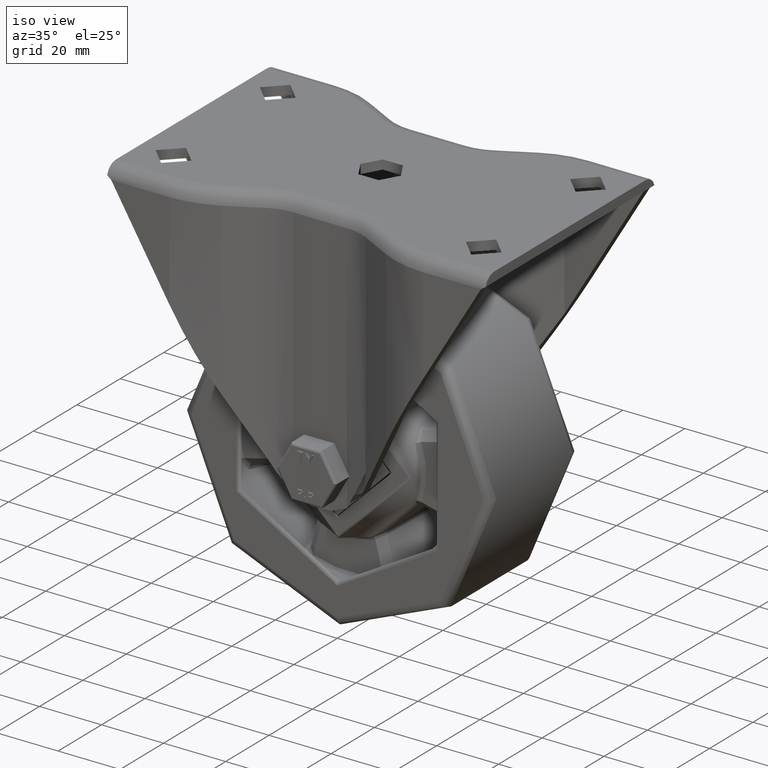
[diagram: clean part render]
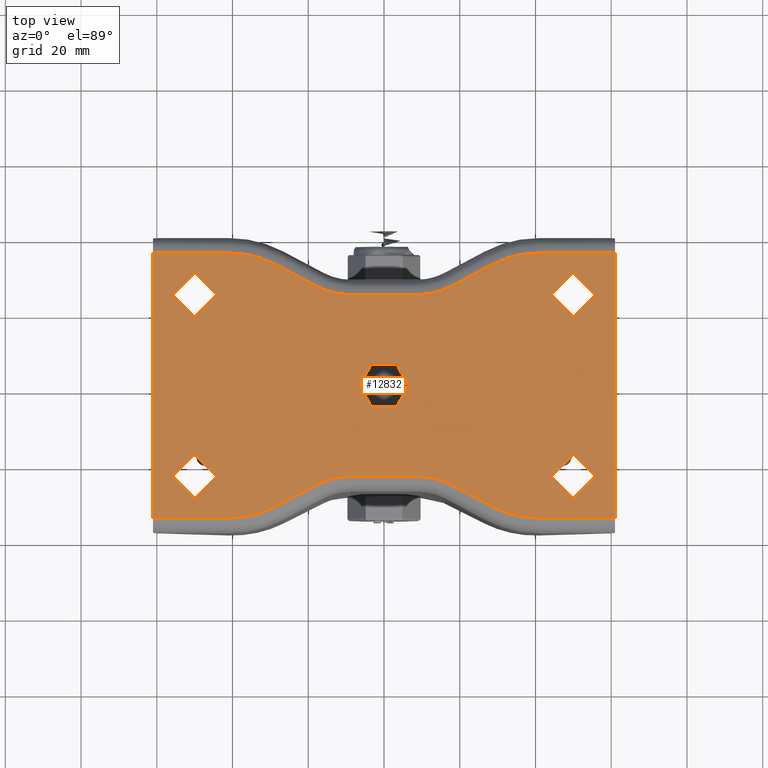
[diagram: tour spotlight — one face highlighted and labeled with its STEP entity id]
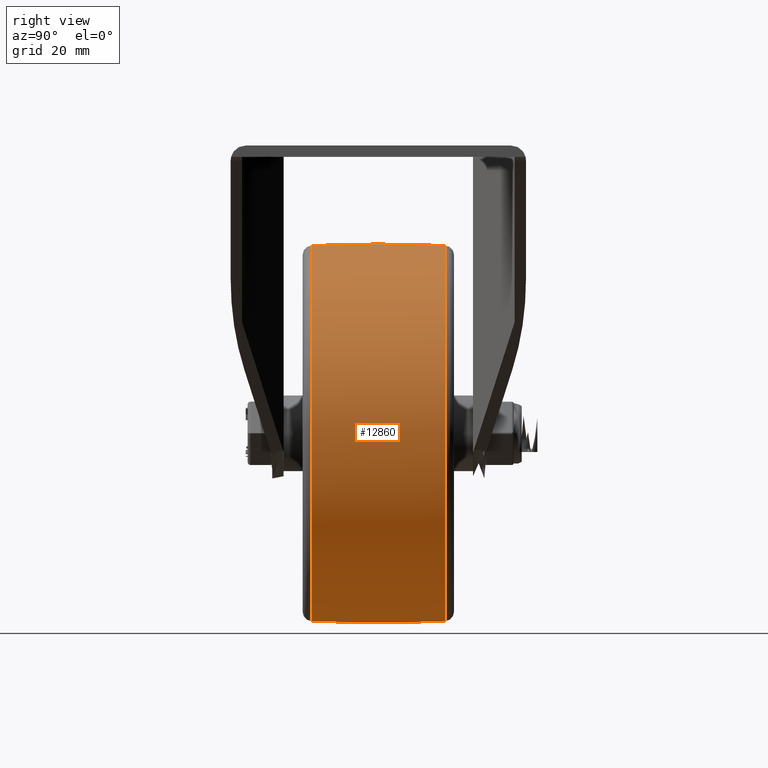
[diagram: tour spotlight — one face highlighted and labeled with its STEP entity id]
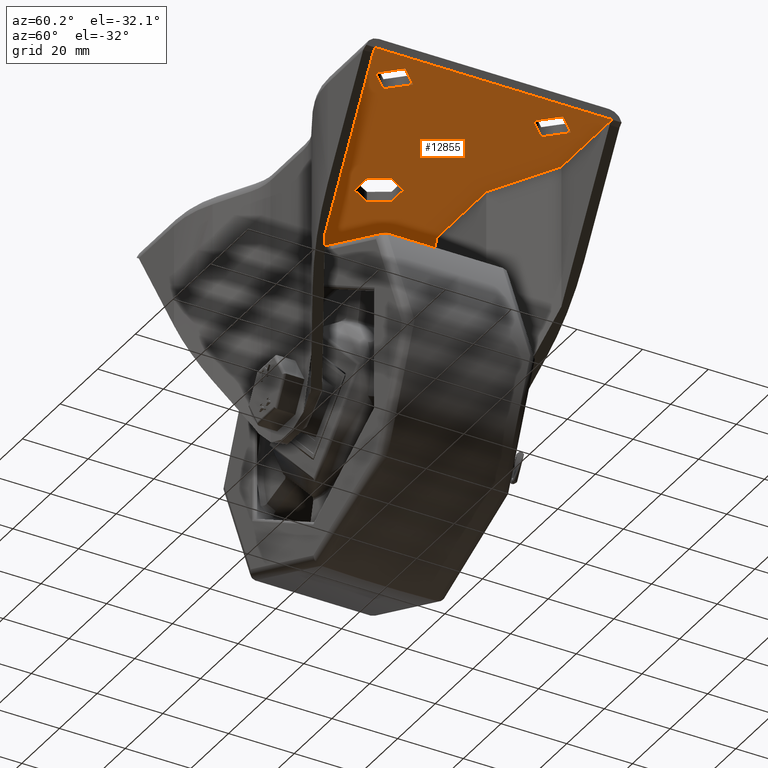
[diagram: tour spotlight — one face highlighted and labeled with its STEP entity id]
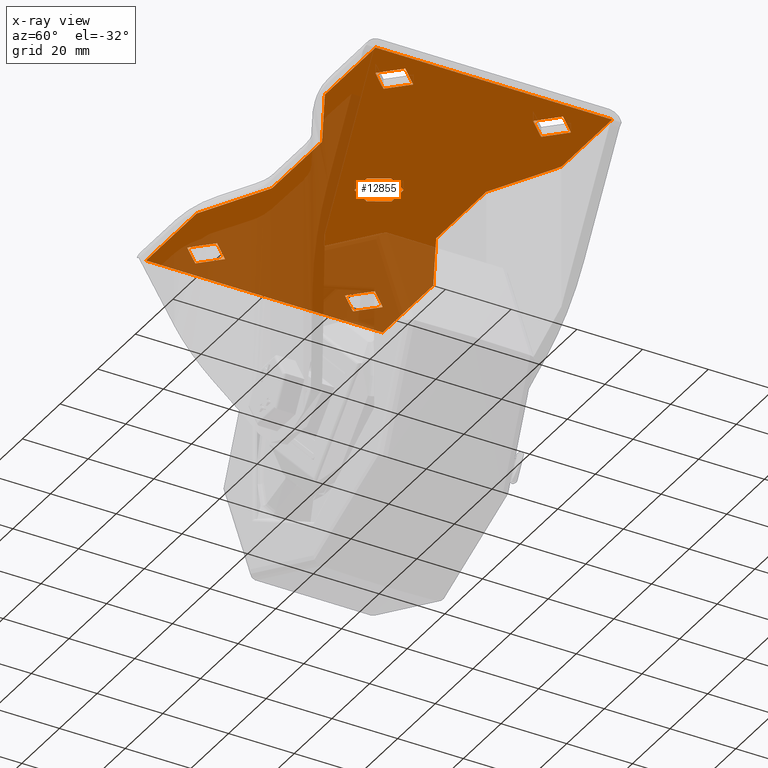
[diagram: x-ray of the same camera — body ghosted, this tour face saturated]
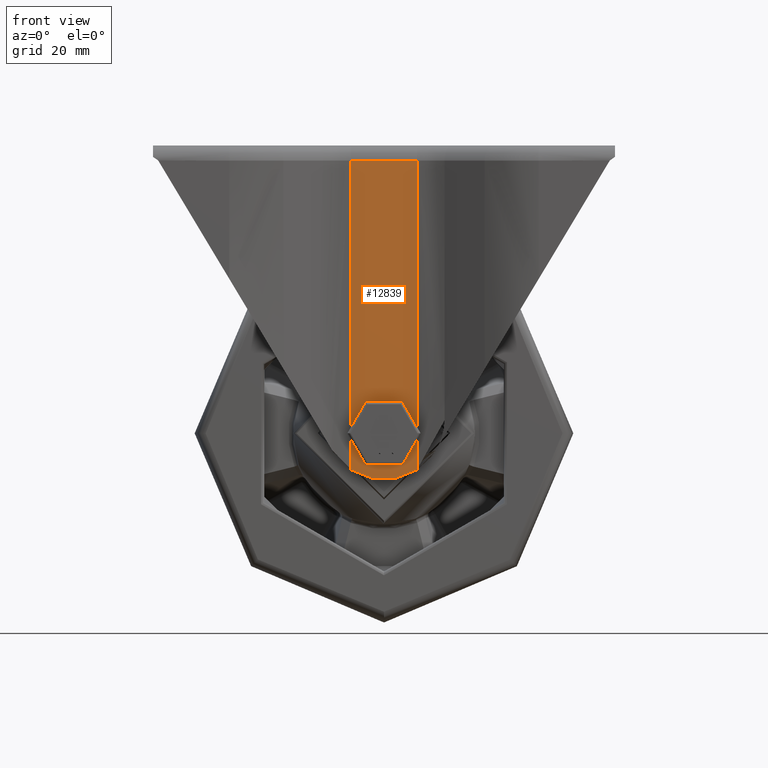
[diagram: tour spotlight — one face highlighted and labeled with its STEP entity id]
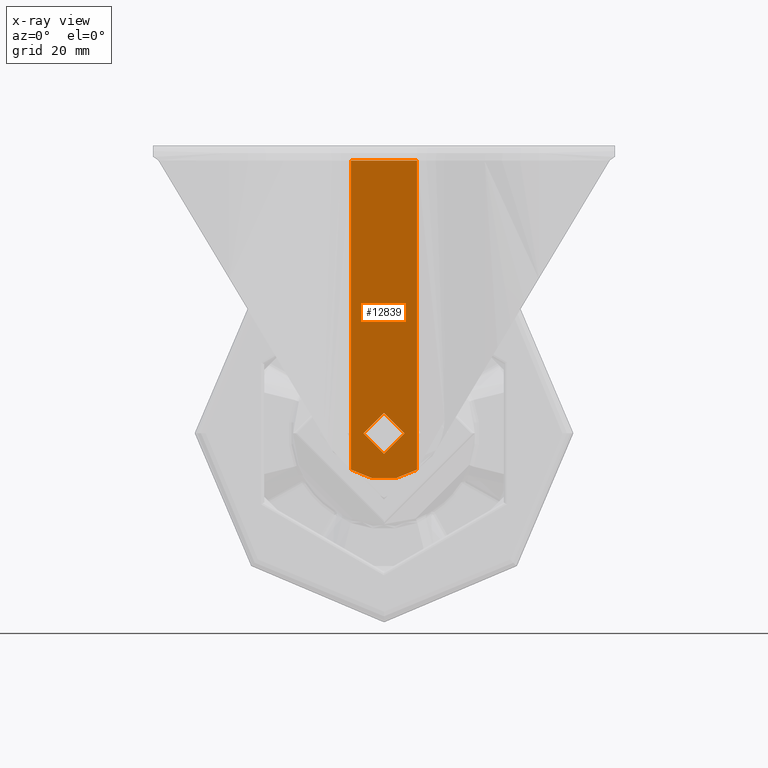
[diagram: x-ray of the same camera — body ghosted, this tour face saturated]
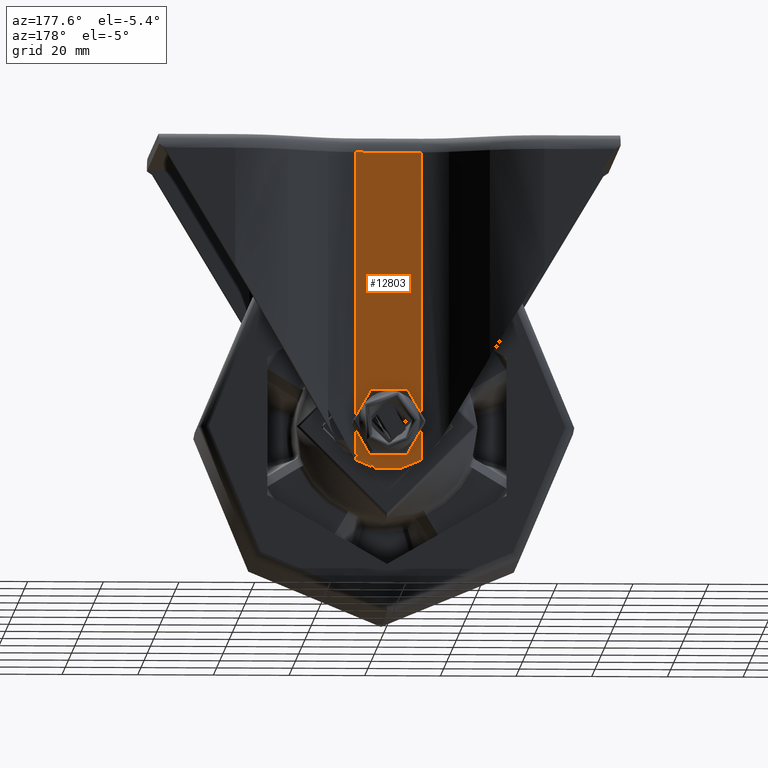
[diagram: tour spotlight — one face highlighted and labeled with its STEP entity id]
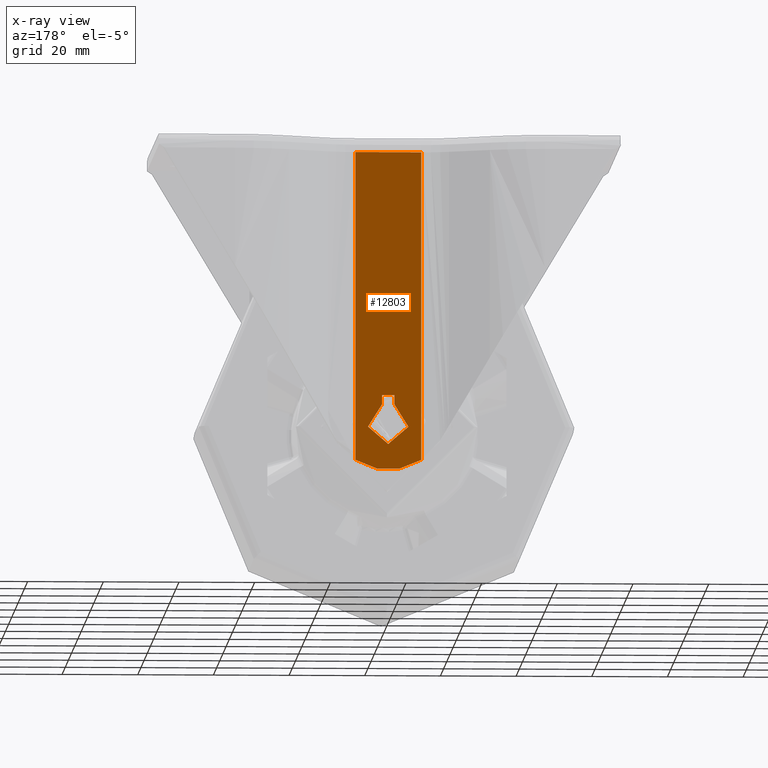
[diagram: x-ray of the same camera — body ghosted, this tour face saturated]
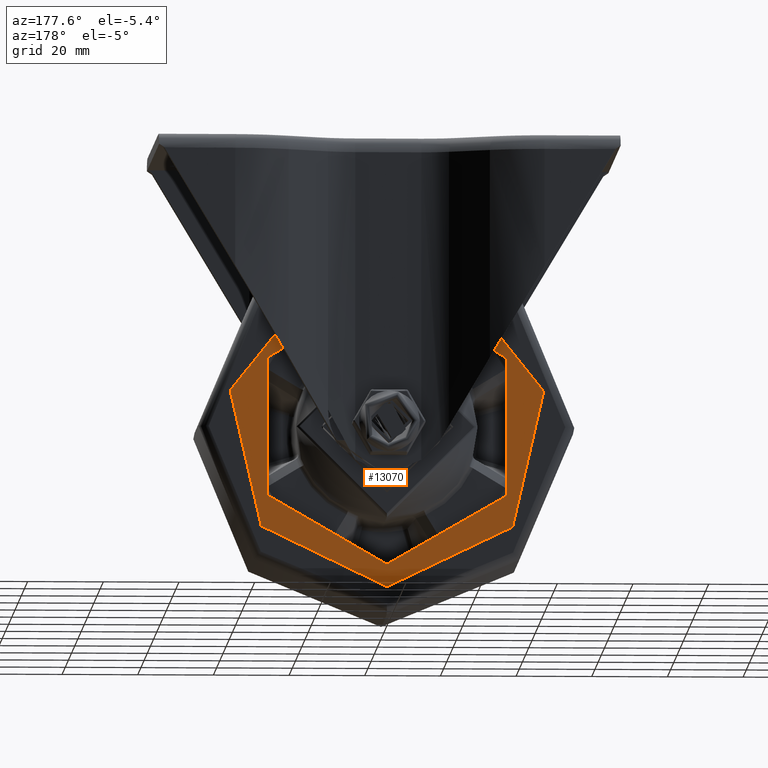
[diagram: tour spotlight — one face highlighted and labeled with its STEP entity id]
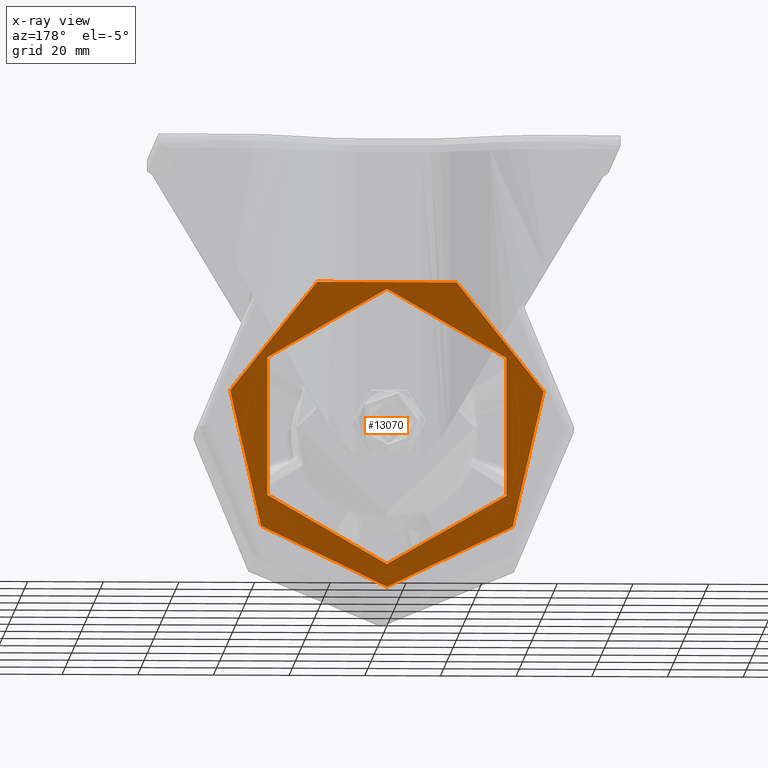
[diagram: x-ray of the same camera — body ghosted, this tour face saturated]
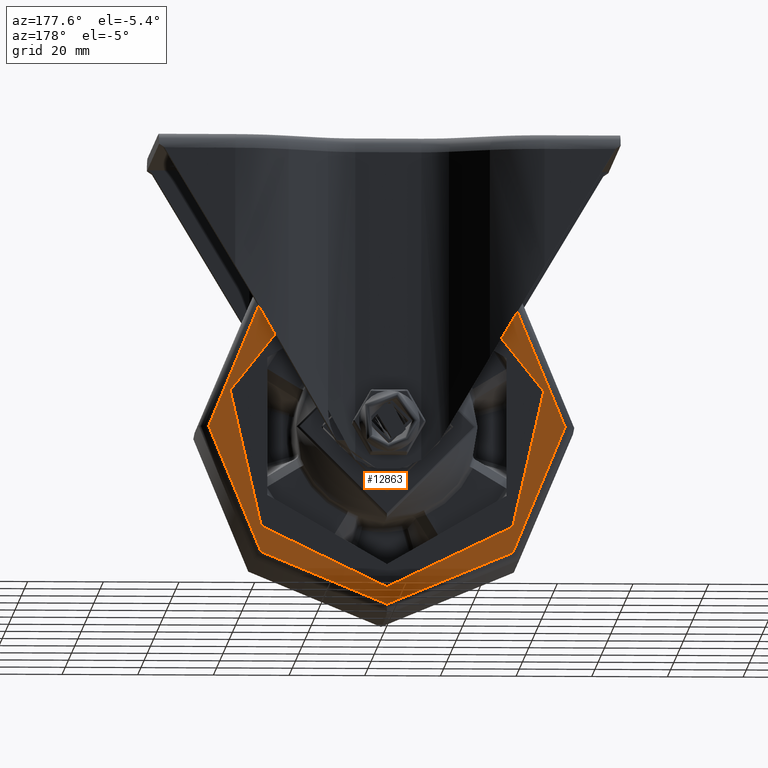
[diagram: tour spotlight — one face highlighted and labeled with its STEP entity id]
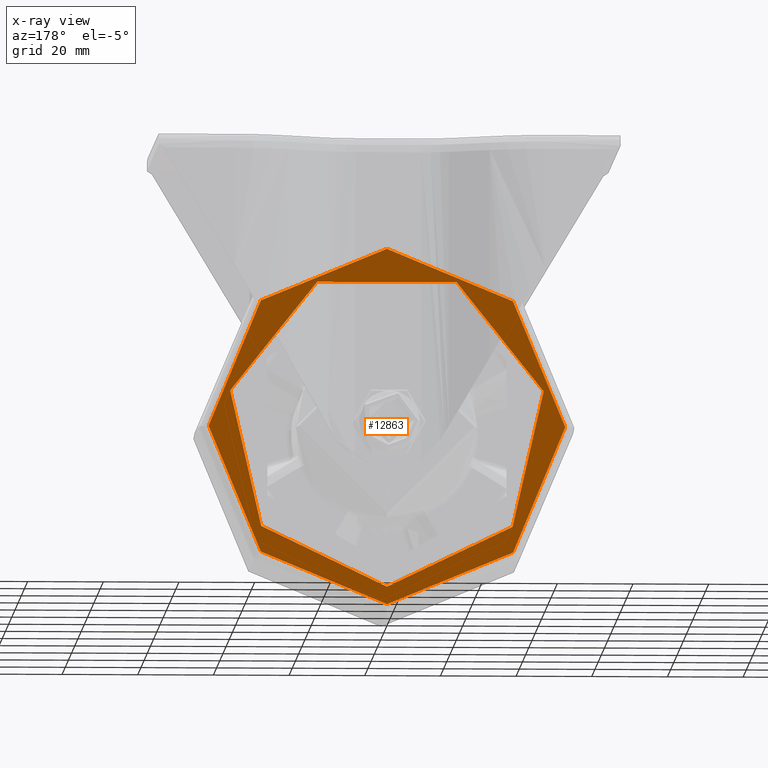
[diagram: x-ray of the same camera — body ghosted, this tour face saturated]
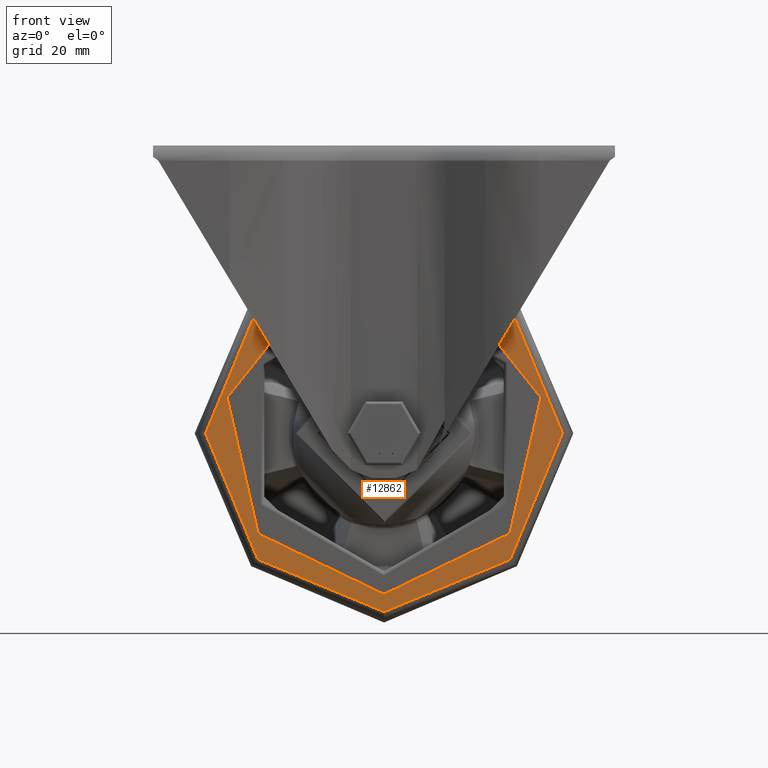
[diagram: tour spotlight — one face highlighted and labeled with its STEP entity id]
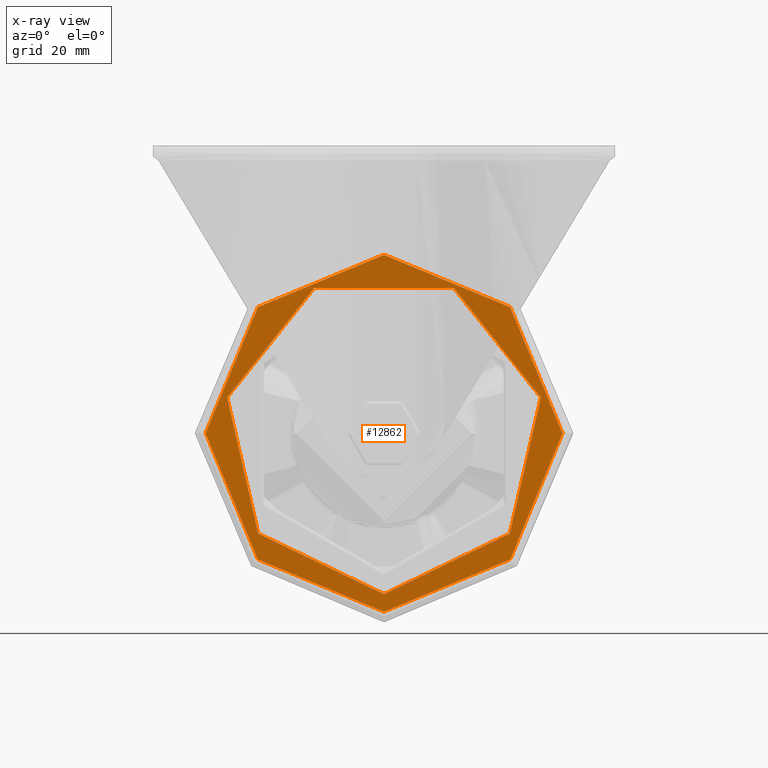
[diagram: x-ray of the same camera — body ghosted, this tour face saturated]
A machine part: a face-by-face anatomy tour. The part has 1172 B-rep faces; the first image is the clean iso view, then the 8 largest visible faces are spotlighted one at a time (largest first), each with its STEP entity span.

Face 1 — top view, entity #12832. In plain terms, the highlighted planar face has unit normal (0, 0, -1).
Definition (entity closure, byte-faithful):
#1518=FACE_BOUND('',#3110,.T.);
#1519=FACE_BOUND('',#3111,.T.);
#1520=FACE_BOUND('',#3112,.T.);
#1521=FACE_BOUND('',#3113,.T.);
#1522=FACE_BOUND('',#3114,.T.);
#1654=CIRCLE('',#13808,5.75);
#1656=CIRCLE('',#13811,5.75);
#1665=CIRCLE('',#13849,26.5);
#1668=CIRCLE('',#13854,19.5);
#1671=CIRCLE('',#13859,19.5);
#1674=CIRCLE('',#13864,26.5);
#1677=CIRCLE('',#13869,6.5);
#1682=CIRCLE('',#13877,5.75);
#1684=CIRCLE('',#13880,5.75);
#1691=CIRCLE('',#13900,26.5);
#1692=CIRCLE('',#13901,19.5);
#1693=CIRCLE('',#13902,19.5);
#1694=CIRCLE('',#13903,26.5);
#1695=CIRCLE('',#13904,6.5);
#2279=FACE_OUTER_BOUND('',#3109,.T.);
#3109=EDGE_LOOP('',(#8844,#8845,#8846,#8847,#8848,#8849,#8850,#8851,#8852,
#8853,#8854,#8855,#8856,#8857,#8858,#8859,#8860,#8861,#8862,#8863));
#3110=EDGE_LOOP('',(#8864,#8865));
#3111=EDGE_LOOP('',(#8866));
#3112=EDGE_LOOP('',(#8867));
#3113=EDGE_LOOP('',(#8868));
#3114=EDGE_LOOP('',(#8869));
#4068=LINE('',#18337,#4766);
#4069=LINE('',#18345,#4767);
#4070=LINE('',#18353,#4768);
#4071=LINE('',#18361,#4769);
#4072=LINE('',#18370,#4770);
#4084=LINE('',#18418,#4782);
#4100=LINE('',#18491,#4798);
#4101=LINE('',#18493,#4799);
#4102=LINE('',#18497,#4800);
#4103=LINE('',#18501,#4801);
#4104=LINE('',#18505,#4802);
#4105=LINE('',#18508,#4803);
#4766=VECTOR('',#15172,10.);
#4767=VECTOR('',#15183,10.);
#4768=VECTOR('',#15194,10.);
#4769=VECTOR('',#15205,10.);
#4770=VECTOR('',#15218,10.);
#4782=VECTOR('',#15264,1.);
#4798=VECTOR('',#15310,1.);
#4799=VECTOR('',#15311,10.);
#4800=VECTOR('',#15314,10.);
#4801=VECTOR('',#15317,10.);
#4802=VECTOR('',#15320,10.);
#4803=VECTOR('',#15323,10.);
#5434=VERTEX_POINT('',#18200);
#5436=VERTEX_POINT('',#18206);
#5466=VERTEX_POINT('',#18334);
#5467=VERTEX_POINT('',#18336);
#5468=VERTEX_POINT('',#18340);
#5469=VERTEX_POINT('',#18344);
#5470=VERTEX_POINT('',#18348);
#5471=VERTEX_POINT('',#18352);
#5472=VERTEX_POINT('',#18356);
#5473=VERTEX_POINT('',#18360);
#5474=VERTEX_POINT('',#18364);
#5475=VERTEX_POINT('',#18368);
#5477=VERTEX_POINT('',#18373);
#5478=VERTEX_POINT('',#18375);
#5489=VERTEX_POINT('',#18401);
#5491=VERTEX_POINT('',#18407);
#5494=VERTEX_POINT('',#18417);
#5512=VERTEX_POINT('',#18490);
#5513=VERTEX_POINT('',#18492);
#5514=VERTEX_POINT('',#18494);
#5515=VERTEX_POINT('',#18496);
#5516=VERTEX_POINT('',#18498);
#5517=VERTEX_POINT('',#18500);
#5518=VERTEX_POINT('',#18502);
#5519=VERTEX_POINT('',#18504);
#5520=VERTEX_POINT('',#18506);
#6677=EDGE_CURVE('',#5434,#5434,#1654,.T.);
#6680=EDGE_CURVE('',#5436,#5436,#1656,.T.);
#6731=EDGE_CURVE('',#5467,#5466,#4068,.T.);
#6733=EDGE_CURVE('',#5468,#5467,#1665,.T.);
#6735=EDGE_CURVE('',#5469,#5468,#4069,.T.);
#6737=EDGE_CURVE('',#5470,#5469,#1668,.T.);
#6739=EDGE_CURVE('',#5471,#5470,#4070,.T.);
#6741=EDGE_CURVE('',#5472,#5471,#1671,.T.);
#6743=EDGE_CURVE('',#5473,#5472,#4071,.T.);
#6745=EDGE_CURVE('',#5474,#5473,#1674,.T.);
#6748=EDGE_CURVE('',#5475,#5474,#4072,.T.);
#6750=EDGE_CURVE('',#5477,#5478,#1677,.T.);
#6763=EDGE_CURVE('',#5489,#5489,#1682,.T.);
#6766=EDGE_CURVE('',#5491,#5491,#1684,.T.);
#6770=EDGE_CURVE('',#5494,#5475,#4084,.T.);
#6797=EDGE_CURVE('',#5466,#5512,#4100,.T.);
#6798=EDGE_CURVE('',#5513,#5512,#4101,.T.);
#6799=EDGE_CURVE('',#5514,#5513,#1691,.T.);
#6800=EDGE_CURVE('',#5515,#5514,#4102,.T.);
#6801=EDGE_CURVE('',#5516,#5515,#1692,.T.);
#6802=EDGE_CURVE('',#5517,#5516,#4103,.T.);
#6803=EDGE_CURVE('',#5518,#5517,#1693,.T.);
#6804=EDGE_CURVE('',#5519,#5518,#4104,.T.);
#6805=EDGE_CURVE('',#5520,#5519,#1694,.T.);
#6806=EDGE_CURVE('',#5494,#5520,#4105,.T.);
#6807=EDGE_CURVE('',#5477,#5478,#1695,.T.);
#8844=ORIENTED_EDGE('',*,*,#6770,.T.);
#8845=ORIENTED_EDGE('',*,*,#6748,.T.);
#8846=ORIENTED_EDGE('',*,*,#6745,.T.);
#8847=ORIENTED_EDGE('',*,*,#6743,.T.);
#8848=ORIENTED_EDGE('',*,*,#6741,.T.);
#8849=ORIENTED_EDGE('',*,*,#6739,.T.);
#8850=ORIENTED_EDGE('',*,*,#6737,.T.);
#8851=ORIENTED_EDGE('',*,*,#6735,.T.);
#8852=ORIENTED_EDGE('',*,*,#6733,.T.);
#8853=ORIENTED_EDGE('',*,*,#6731,.T.);
#8854=ORIENTED_EDGE('',*,*,#6797,.T.);
#8855=ORIENTED_EDGE('',*,*,#6798,.F.);
#8856=ORIENTED_EDGE('',*,*,#6799,.F.);
#8857=ORIENTED_EDGE('',*,*,#6800,.F.);
#8858=ORIENTED_EDGE('',*,*,#6801,.F.);
#8859=ORIENTED_EDGE('',*,*,#6802,.F.);
#8860=ORIENTED_EDGE('',*,*,#6803,.F.);
#8861=ORIENTED_EDGE('',*,*,#6804,.F.);
#8862=ORIENTED_EDGE('',*,*,#6805,.F.);
#8863=ORIENTED_EDGE('',*,*,#6806,.F.);
#8864=ORIENTED_EDGE('',*,*,#6807,.T.);
#8865=ORIENTED_EDGE('',*,*,#6750,.F.);
#8866=ORIENTED_EDGE('',*,*,#6680,.F.);
#8867=ORIENTED_EDGE('',*,*,#6677,.F.);
#8868=ORIENTED_EDGE('',*,*,#6763,.T.);
#8869=ORIENTED_EDGE('',*,*,#6766,.T.);
#12543=PLANE('',#13899);
#12832=ADVANCED_FACE('',(#2279,#1518,#1519,#1520,#1521,#1522),#12543,.F.);
#13808=AXIS2_PLACEMENT_3D('',#18202,#15063,#15064);
#13811=AXIS2_PLACEMENT_3D('',#18208,#15070,#15071);
#13849=AXIS2_PLACEMENT_3D('',#18341,#15177,#15178);
#13854=AXIS2_PLACEMENT_3D('',#18349,#15188,#15189);
#13859=AXIS2_PLACEMENT_3D('',#18357,#15199,#15200);
#13864=AXIS2_PLACEMENT_3D('',#18365,#15210,#15211);
#13869=AXIS2_PLACEMENT_3D('',#18376,#15222,#15223);
#13877=AXIS2_PLACEMENT_3D('',#18403,#15246,#15247);
#13880=AXIS2_PLACEMENT_3D('',#18409,#15253,#15254);
#13899=AXIS2_PLACEMENT_3D('',#18489,#15308,#15309);
#13900=AXIS2_PLACEMENT_3D('',#18495,#15312,#15313);
#13901=AXIS2_PLACEMENT_3D('',#18499,#15315,#15316);
#13902=AXIS2_PLACEMENT_3D('',#18503,#15318,#15319);
#13903=AXIS2_PLACEMENT_3D('',#18507,#15321,#15322);
#13904=AXIS2_PLACEMENT_3D('',#18509,#15324,#15325);
#15063=DIRECTION('center_axis',(0.,0.,1.));
#15064=DIRECTION('ref_axis',(1.,0.,0.));
#15070=DIRECTION('center_axis',(0.,0.,1.));
#15071=DIRECTION('ref_axis',(1.,0.,0.));
#15172=DIRECTION('',(-1.,0.,0.));
#15177=DIRECTION('center_axis',(0.,0.,1.));
#15178=DIRECTION('ref_axis',(0.241921895599667,0.970295726275997,0.));
#15183=DIRECTION('',(-0.882947592858926,0.469471562785892,0.));
#15188=DIRECTION('center_axis',(0.,0.,-1.));
#15189=DIRECTION('ref_axis',(-0.24192189559967,-0.970295726275996,0.));
#15194=DIRECTION('',(-1.,0.,0.));
#15199=DIRECTION('center_axis',(0.,0.,-1.));
#15200=DIRECTION('ref_axis',(0.241921895599665,-0.970295726275997,0.));
#15205=DIRECTION('',(-0.882947592858928,-0.469471562785889,0.));
#15210=DIRECTION('center_axis',(0.,0.,1.));
#15211=DIRECTION('ref_axis',(-0.241921895599667,0.970295726275996,0.));
#15218=DIRECTION('',(-1.,0.,0.));
#15222=DIRECTION('center_axis',(0.,0.,1.));
#15223=DIRECTION('ref_axis',(-1.,0.,0.));
#15246=DIRECTION('center_axis',(0.,0.,-1.));
#15247=DIRECTION('ref_axis',(1.,0.,0.));
#15253=DIRECTION('center_axis',(0.,0.,-1.));
#15254=DIRECTION('ref_axis',(1.,0.,0.));
#15264=DIRECTION('',(0.,1.,0.));
#15308=DIRECTION('center_axis',(0.,0.,-1.));
#15309=DIRECTION('ref_axis',(0.,-1.,0.));
#15310=DIRECTION('',(0.,-1.,0.));
#15311=DIRECTION('',(-1.,0.,0.));
#15312=DIRECTION('center_axis',(0.,0.,-1.));
#15313=DIRECTION('ref_axis',(0.241921895599667,-0.970295726275997,0.));
#15314=DIRECTION('',(-0.882947592858926,-0.469471562785892,0.));
#15315=DIRECTION('center_axis',(0.,0.,1.));
#15316=DIRECTION('ref_axis',(-0.24192189559967,0.970295726275996,0.));
#15317=DIRECTION('',(-1.,0.,0.));
#15318=DIRECTION('center_axis',(0.,0.,1.));
#15319=DIRECTION('ref_axis',(0.241921895599665,0.970295726275997,0.));
#15320=DIRECTION('',(-0.882947592858928,0.469471562785889,0.));
#15321=DIRECTION('center_axis',(0.,0.,-1.));
#15322=DIRECTION('ref_axis',(-0.241921895599667,-0.970295726275996,0.));
#15323=DIRECTION('',(-1.,0.,0.));
#15324=DIRECTION('center_axis',(0.,0.,-1.));
#15325=DIRECTION('ref_axis',(-1.,0.,0.));
#18200=CARTESIAN_POINT('',(536.793513280452,-26.1950614001457,0.));
#18202=CARTESIAN_POINT('Origin',(531.043513280452,-26.1950614001457,0.));
#18206=CARTESIAN_POINT('',(436.793513280452,-26.1950614001457,0.));
#18208=CARTESIAN_POINT('Origin',(431.043513280452,-26.1950614001457,0.));
#18334=CARTESIAN_POINT('',(420.043513280452,-15.1950614001456,0.));
#18336=CARTESIAN_POINT('',(440.166953390703,-15.1950614001456,0.));
#18337=CARTESIAN_POINT('',(440.166953390703,-15.1950614001456,0.));
#18340=CARTESIAN_POINT('',(452.607949804529,-18.2969501893841,0.));
#18341=CARTESIAN_POINT('Origin',(440.166953390703,-41.6950614001456,0.));
#18344=CARTESIAN_POINT('',(463.169337165974,-23.9125394608946,0.));
#18345=CARTESIAN_POINT('',(456.243007828074,-20.2297448251393,0.));
#18348=CARTESIAN_POINT('',(472.324032640299,-26.1950614001456,0.));
#18349=CARTESIAN_POINT('Origin',(472.324032640299,-6.6950614001456,0.));
#18352=CARTESIAN_POINT('',(489.762993920606,-26.1950614001456,0.));
#18353=CARTESIAN_POINT('',(460.605233335578,-26.1950614001456,0.));
#18356=CARTESIAN_POINT('',(498.917689394931,-23.9125394608947,0.));
#18357=CARTESIAN_POINT('Origin',(489.762993920606,-6.6950614001456,0.));
#18360=CARTESIAN_POINT('',(509.479076756376,-18.296950189384,0.));
#18361=CARTESIAN_POINT('',(477.611855707179,-35.2410521820833,0.));
#18364=CARTESIAN_POINT('',(521.920073170202,-15.1950614001456,0.));
#18365=CARTESIAN_POINT('Origin',(521.920073170202,-41.6950614001456,0.));
#18368=CARTESIAN_POINT('',(542.043513280452,-15.1950614001456,0.));
#18370=CARTESIAN_POINT('',(440.166953390703,-15.1950614001456,0.));
#18373=CARTESIAN_POINT('',(487.543513280408,-50.195085335039,0.));
#18375=CARTESIAN_POINT('',(474.543513280496,-50.195085335039,0.));
#18376=CARTESIAN_POINT('Origin',(481.043513280452,-50.1950614001457,0.));
#18401=CARTESIAN_POINT('',(536.793513280452,-74.1951092699323,0.));
#18403=CARTESIAN_POINT('Origin',(531.043513280452,-74.1951092699323,0.));
#18407=CARTESIAN_POINT('',(436.793513280452,-74.1951092699323,0.));
#18409=CARTESIAN_POINT('Origin',(431.043513280452,-74.1951092699323,0.));
#18417=CARTESIAN_POINT('',(542.043513280452,-85.1951092699324,0.));
#18418=CARTESIAN_POINT('',(542.043513280452,-85.6951092699324,0.));
#18489=CARTESIAN_POINT('Origin',(440.166953390703,-58.6951092699324,0.));
#18490=CARTESIAN_POINT('',(420.043513280452,-85.1951092699324,0.));
#18491=CARTESIAN_POINT('',(420.043513280452,-50.1951092699323,0.));
#18492=CARTESIAN_POINT('',(440.166953390703,-85.1951092699324,0.));
#18493=CARTESIAN_POINT('',(440.166953390703,-85.1951092699324,0.));
#18494=CARTESIAN_POINT('',(452.607949804529,-82.0932204806939,0.));
#18495=CARTESIAN_POINT('Origin',(440.166953390703,-58.6951092699324,0.));
#18496=CARTESIAN_POINT('',(463.169337165974,-76.4776312091834,0.));
#18497=CARTESIAN_POINT('',(456.243007828074,-80.1604258449387,0.));
#18498=CARTESIAN_POINT('',(472.324032640299,-74.1951092699324,0.));
#18499=CARTESIAN_POINT('Origin',(472.324032640299,-93.6951092699324,0.));
#18500=CARTESIAN_POINT('',(489.762993920606,-74.1951092699324,0.));
#18501=CARTESIAN_POINT('',(460.605233335578,-74.1951092699324,0.));
#18502=CARTESIAN_POINT('',(498.917689394931,-76.4776312091833,0.));
#18503=CARTESIAN_POINT('Origin',(489.762993920606,-93.6951092699324,0.));
#18504=CARTESIAN_POINT('',(509.479076756376,-82.093220480694,0.));
#18505=CARTESIAN_POINT('',(477.611855707179,-65.1491184879947,0.));
#18506=CARTESIAN_POINT('',(521.920073170202,-85.1951092699324,0.));
#18507=CARTESIAN_POINT('Origin',(521.920073170202,-58.6951092699324,0.));
#18508=CARTESIAN_POINT('',(440.166953390703,-85.1951092699324,0.));
#18509=CARTESIAN_POINT('Origin',(481.043513280452,-50.1951092699323,0.));

Face 2 — right view, entity #12860. In plain terms, the highlighted face is a freeform B-spline surface patch.
Definition (entity closure, byte-faithful):
#382=(
BOUNDED_SURFACE()
B_SPLINE_SURFACE(2,2,((#18613,#18614,#18615,#18616,#18617,#18618,#18619,
#18620,#18621),(#18622,#18623,#18624,#18625,#18626,#18627,#18628,#18629,
#18630),(#18631,#18632,#18633,#18634,#18635,#18636,#18637,#18638,#18639)),
 .UNSPECIFIED.,.F.,.T.,.F.)
B_SPLINE_SURFACE_WITH_KNOTS((3,3),(3,2,2,2,3),(-0.044011693137184,0.044011693137184),
(-3.14159265358979,-1.5707963267949,0.,1.5707963267949,3.14159265358979),
 .UNSPECIFIED.)
GEOMETRIC_REPRESENTATION_ITEM()
RATIONAL_B_SPLINE_SURFACE(((1.,0.707106781186548,1.,0.707106781186548,1.,
0.707106781186548,1.,0.707106781186548,1.),(0.999031641760092,0.70642204850849,
0.999031641760092,0.70642204850849,0.999031641760092,0.70642204850849,0.999031641760092,
0.70642204850849,0.999031641760092),(1.,0.707106781186548,1.,0.707106781186548,
1.,0.707106781186548,1.,0.707106781186548,1.)))
REPRESENTATION_ITEM('')
SURFACE()
);
#1714=CIRCLE('',#13958,49.6124146145398);
#1715=CIRCLE('',#13959,400.25);
#1716=CIRCLE('',#13960,49.6124146145398);
#2307=FACE_OUTER_BOUND('',#3148,.T.);
#3148=EDGE_LOOP('',(#9009,#9010,#9011,#9012));
#5540=VERTEX_POINT('',#18610);
#5541=VERTEX_POINT('',#18640);
#6853=EDGE_CURVE('',#5540,#5540,#1714,.T.);
#6854=EDGE_CURVE('',#5540,#5541,#1715,.T.);
#6855=EDGE_CURVE('',#5541,#5541,#1716,.T.);
#9009=ORIENTED_EDGE('',*,*,#6853,.F.);
#9010=ORIENTED_EDGE('',*,*,#6854,.T.);
#9011=ORIENTED_EDGE('',*,*,#6855,.T.);
#9012=ORIENTED_EDGE('',*,*,#6854,.F.);
#12860=ADVANCED_FACE('',(#2307),#382,.F.);
#13958=AXIS2_PLACEMENT_3D('',#18612,#15453,#15454);
#13959=AXIS2_PLACEMENT_3D('',#18641,#15455,#15456);
#13960=AXIS2_PLACEMENT_3D('',#18642,#15457,#15458);
#15453=DIRECTION('center_axis',(0.,1.,0.));
#15454=DIRECTION('ref_axis',(0.,0.,1.));
#15455=DIRECTION('center_axis',(-1.,0.,1.22464679914735E-16));
#15456=DIRECTION('ref_axis',(-1.22464679914735E-16,0.,-1.));
#15457=DIRECTION('center_axis',(0.,1.,0.));
#15458=DIRECTION('ref_axis',(0.,0.,1.));
#18610=CARTESIAN_POINT('',(6.07576847556676E-15,17.6099937146449,-49.6124146145398));
#18612=CARTESIAN_POINT('Origin',(0.,17.6099937146449,0.));
#18613=CARTESIAN_POINT('Ctrl Pts',(0.,-17.6099937146449,-49.6124146145399));
#18614=CARTESIAN_POINT('Ctrl Pts',(-49.6124146145399,-17.6099937146449,
-49.6124146145399));
#18615=CARTESIAN_POINT('Ctrl Pts',(-49.6124146145399,-17.6099937146449,
0.));
#18616=CARTESIAN_POINT('Ctrl Pts',(-49.6124146145399,-17.6099937146449,
49.6124146145399));
#18617=CARTESIAN_POINT('Ctrl Pts',(0.,-17.6099937146449,49.6124146145399));
#18618=CARTESIAN_POINT('Ctrl Pts',(49.6124146145399,-17.6099937146449,49.6124146145399));
#18619=CARTESIAN_POINT('Ctrl Pts',(49.6124146145399,-17.6099937146449,0.));
#18620=CARTESIAN_POINT('Ctrl Pts',(49.6124146145399,-17.6099937146449,-49.6124146145399));
#18621=CARTESIAN_POINT('Ctrl Pts',(0.,-17.6099937146449,-49.6124146145399));
#18622=CARTESIAN_POINT('Ctrl Pts',(0.,-1.11022302462515E-15,-50.3879610707598));
#18623=CARTESIAN_POINT('Ctrl Pts',(-50.3879610707598,-1.11022302462515E-15,
-50.3879610707598));
#18624=CARTESIAN_POINT('Ctrl Pts',(-50.3879610707598,-1.11022302462516E-15,
0.));
#18625=CARTESIAN_POINT('Ctrl Pts',(-50.3879610707598,-1.11022302462516E-15,
50.3879610707598));
#18626=CARTESIAN_POINT('Ctrl Pts',(0.,-1.11022302462516E-15,50.3879610707598));
#18627=CARTESIAN_POINT('Ctrl Pts',(50.3879610707598,-1.11022302462516E-15,
50.3879610707598));
#18628=CARTESIAN_POINT('Ctrl Pts',(50.3879610707598,-1.11022302462516E-15,
0.));
#18629=CARTESIAN_POINT('Ctrl Pts',(50.3879610707598,-1.11022302462515E-15,
-50.3879610707598));
#18630=CARTESIAN_POINT('Ctrl Pts',(0.,-1.11022302462515E-15,-50.3879610707598));
#18631=CARTESIAN_POINT('Ctrl Pts',(0.,17.6099937146449,-49.6124146145399));
#18632=CARTESIAN_POINT('Ctrl Pts',(-49.6124146145399,17.6099937146449,-49.6124146145399));
#18633=CARTESIAN_POINT('Ctrl Pts',(-49.6124146145399,17.6099937146449,0.));
#18634=CARTESIAN_POINT('Ctrl Pts',(-49.6124146145399,17.6099937146449,49.6124146145399));
#18635=CARTESIAN_POINT('Ctrl Pts',(0.,17.6099937146449,49.6124146145399));
#18636=CARTESIAN_POINT('Ctrl Pts',(49.6124146145399,17.6099937146449,49.6124146145399));
#18637=CARTESIAN_POINT('Ctrl Pts',(49.6124146145399,17.6099937146449,0.));
#18638=CARTESIAN_POINT('Ctrl Pts',(49.6124146145399,17.6099937146449,-49.6124146145399));
#18639=CARTESIAN_POINT('Ctrl Pts',(0.,17.6099937146449,-49.6124146145399));
#18640=CARTESIAN_POINT('',(6.07576847556675E-15,-17.6099937146449,-49.6124146145398));
#18641=CARTESIAN_POINT('Origin',(4.2893254140136E-14,8.67361737988404E-15,
350.25));
#18642=CARTESIAN_POINT('Origin',(0.,-17.6099937146449,0.));

Face 3 — auxiliary view, entity #12855. An x-ray twin of the same camera follows (body ghosted, this face saturated) — the face is partly hidden behind the body. In plain terms, the highlighted planar face has unit normal (0, 0, -1).
Definition (entity closure, byte-faithful):
#1524=FACE_BOUND('',#3139,.T.);
#1525=FACE_BOUND('',#3140,.T.);
#1526=FACE_BOUND('',#3141,.T.);
#1527=FACE_BOUND('',#3142,.T.);
#1528=FACE_BOUND('',#3143,.T.);
#1653=CIRCLE('',#13807,5.75);
#1655=CIRCLE('',#13810,5.75);
#1678=CIRCLE('',#13870,6.5);
#1681=CIRCLE('',#13876,5.75);
#1683=CIRCLE('',#13879,5.75);
#1709=CIRCLE('',#13946,6.5);
#2302=FACE_OUTER_BOUND('',#3138,.T.);
#3138=EDGE_LOOP('',(#8973,#8974,#8975,#8976,#8977,#8978,#8979,#8980,#8981,
#8982,#8983,#8984));
#3139=EDGE_LOOP('',(#8985));
#3140=EDGE_LOOP('',(#8986));
#3141=EDGE_LOOP('',(#8987));
#3142=EDGE_LOOP('',(#8988));
#3143=EDGE_LOOP('',(#8989,#8990));
#4028=LINE('',#18172,#4726);
#4032=LINE('',#18187,#4730);
#4034=LINE('',#18195,#4732);
#4042=LINE('',#18232,#4740);
#4047=LINE('',#18265,#4745);
#4075=LINE('',#18385,#4773);
#4080=LINE('',#18396,#4778);
#4086=LINE('',#18422,#4784);
#4092=LINE('',#18449,#4790);
#4095=LINE('',#18456,#4793);
#4099=LINE('',#18488,#4797);
#4125=LINE('',#18594,#4823);
#4726=VECTOR('',#15034,10.);
#4730=VECTOR('',#15050,10.);
#4732=VECTOR('',#15056,10.);
#4740=VECTOR('',#15086,10.);
#4745=VECTOR('',#15103,10.);
#4773=VECTOR('',#15231,10.);
#4778=VECTOR('',#15238,10.);
#4784=VECTOR('',#15268,1.);
#4790=VECTOR('',#15284,10.);
#4793=VECTOR('',#15291,10.);
#4797=VECTOR('',#15307,10.);
#4823=VECTOR('',#15427,1.);
#5421=VERTEX_POINT('',#18168);
#5423=VERTEX_POINT('',#18171);
#5426=VERTEX_POINT('',#18181);
#5428=VERTEX_POINT('',#18185);
#5431=VERTEX_POINT('',#18192);
#5432=VERTEX_POINT('',#18194);
#5433=VERTEX_POINT('',#18198);
#5435=VERTEX_POINT('',#18204);
#5476=VERTEX_POINT('',#18372);
#5479=VERTEX_POINT('',#18377);
#5481=VERTEX_POINT('',#18382);
#5482=VERTEX_POINT('',#18384);
#5486=VERTEX_POINT('',#18393);
#5487=VERTEX_POINT('',#18395);
#5488=VERTEX_POINT('',#18399);
#5490=VERTEX_POINT('',#18405);
#5503=VERTEX_POINT('',#18448);
#5504=VERTEX_POINT('',#18452);
#6662=EDGE_CURVE('',#5423,#5421,#4028,.T.);
#6670=EDGE_CURVE('',#5426,#5428,#4032,.T.);
#6673=EDGE_CURVE('',#5432,#5431,#4034,.T.);
#6675=EDGE_CURVE('',#5433,#5433,#1653,.T.);
#6678=EDGE_CURVE('',#5435,#5435,#1655,.T.);
#6688=EDGE_CURVE('',#5428,#5423,#4042,.T.);
#6699=EDGE_CURVE('',#5421,#5432,#4047,.T.);
#6752=EDGE_CURVE('',#5476,#5479,#1678,.T.);
#6754=EDGE_CURVE('',#5481,#5482,#4075,.T.);
#6759=EDGE_CURVE('',#5486,#5487,#4080,.T.);
#6761=EDGE_CURVE('',#5488,#5488,#1681,.T.);
#6764=EDGE_CURVE('',#5490,#5490,#1683,.T.);
#6773=EDGE_CURVE('',#5431,#5487,#4086,.T.);
#6782=EDGE_CURVE('',#5482,#5503,#4092,.T.);
#6786=EDGE_CURVE('',#5503,#5504,#4095,.T.);
#6796=EDGE_CURVE('',#5504,#5486,#4099,.T.);
#6846=EDGE_CURVE('',#5481,#5426,#4125,.T.);
#6847=EDGE_CURVE('',#5476,#5479,#1709,.T.);
#8973=ORIENTED_EDGE('',*,*,#6773,.T.);
#8974=ORIENTED_EDGE('',*,*,#6759,.F.);
#8975=ORIENTED_EDGE('',*,*,#6796,.F.);
#8976=ORIENTED_EDGE('',*,*,#6786,.F.);
#8977=ORIENTED_EDGE('',*,*,#6782,.F.);
#8978=ORIENTED_EDGE('',*,*,#6754,.F.);
#8979=ORIENTED_EDGE('',*,*,#6846,.T.);
#8980=ORIENTED_EDGE('',*,*,#6670,.T.);
#8981=ORIENTED_EDGE('',*,*,#6688,.T.);
#8982=ORIENTED_EDGE('',*,*,#6662,.T.);
#8983=ORIENTED_EDGE('',*,*,#6699,.T.);
#8984=ORIENTED_EDGE('',*,*,#6673,.T.);
#8985=ORIENTED_EDGE('',*,*,#6675,.T.);
#8986=ORIENTED_EDGE('',*,*,#6678,.T.);
#8987=ORIENTED_EDGE('',*,*,#6764,.F.);
#8988=ORIENTED_EDGE('',*,*,#6761,.F.);
#8989=ORIENTED_EDGE('',*,*,#6752,.T.);
#8990=ORIENTED_EDGE('',*,*,#6847,.F.);
#12552=PLANE('',#13945);
#12855=ADVANCED_FACE('',(#2302,#1524,#1525,#1526,#1527,#1528),#12552,.T.);
#13807=AXIS2_PLACEMENT_3D('',#18199,#15060,#15061);
#13810=AXIS2_PLACEMENT_3D('',#18205,#15067,#15068);
#13870=AXIS2_PLACEMENT_3D('',#18379,#15225,#15226);
#13876=AXIS2_PLACEMENT_3D('',#18400,#15243,#15244);
#13879=AXIS2_PLACEMENT_3D('',#18406,#15250,#15251);
#13945=AXIS2_PLACEMENT_3D('',#18593,#15425,#15426);
#13946=AXIS2_PLACEMENT_3D('',#18595,#15428,#15429);
#15034=DIRECTION('',(1.,0.,0.));
#15050=DIRECTION('',(1.,0.,0.));
#15056=DIRECTION('',(1.,0.,0.));
#15060=DIRECTION('center_axis',(0.,0.,1.));
#15061=DIRECTION('ref_axis',(1.,0.,0.));
#15067=DIRECTION('center_axis',(0.,0.,1.));
#15068=DIRECTION('ref_axis',(1.,0.,0.));
#15086=DIRECTION('',(0.882947592858926,-0.469471562785892,0.));
#15103=DIRECTION('',(0.882947592858928,0.469471562785889,0.));
#15225=DIRECTION('center_axis',(0.,0.,1.));
#15226=DIRECTION('ref_axis',(-1.,0.,0.));
#15231=DIRECTION('',(1.,0.,0.));
#15238=DIRECTION('',(1.,0.,0.));
#15243=DIRECTION('center_axis',(0.,0.,-1.));
#15244=DIRECTION('ref_axis',(1.,0.,0.));
#15250=DIRECTION('center_axis',(0.,0.,-1.));
#15251=DIRECTION('ref_axis',(1.,0.,0.));
#15268=DIRECTION('',(0.,-1.,0.));
#15284=DIRECTION('',(0.882947592858926,0.469471562785892,0.));
#15291=DIRECTION('',(1.,0.,0.));
#15307=DIRECTION('',(0.882947592858928,-0.469471562785889,0.));
#15425=DIRECTION('center_axis',(0.,0.,-1.));
#15426=DIRECTION('ref_axis',(0.,-1.,0.));
#15427=DIRECTION('',(0.,1.,0.));
#15428=DIRECTION('center_axis',(0.,0.,-1.));
#15429=DIRECTION('ref_axis',(-1.,0.,0.));
#18168=CARTESIAN_POINT('',(494.375561973204,-25.1950614001456,-3.00000000000001));
#18171=CARTESIAN_POINT('',(467.7114645877,-25.1950614001456,-3.00000000000001));
#18172=CARTESIAN_POINT('',(460.605233335578,-25.1950614001456,-3.00000000000001));
#18181=CARTESIAN_POINT('',(420.043513280453,-14.1950614001456,-3.00000000000001));
#18185=CARTESIAN_POINT('',(447.02347346889,-14.1950614001456,-3.00000000000001));
#18187=CARTESIAN_POINT('',(491.084253281353,-14.1950614001456,-3.00000000000001));
#18192=CARTESIAN_POINT('',(542.043513280452,-14.1950614001456,-3.));
#18194=CARTESIAN_POINT('',(515.063553092014,-14.1950614001456,-3.00000000000001));
#18195=CARTESIAN_POINT('',(491.084253281353,-14.1950614001456,-3.00000000000001));
#18198=CARTESIAN_POINT('',(536.793513280452,-26.1950614001457,-3.));
#18199=CARTESIAN_POINT('Origin',(531.043513280452,-26.1950614001457,-3.));
#18204=CARTESIAN_POINT('',(436.793513280452,-26.1950614001457,-3.));
#18205=CARTESIAN_POINT('Origin',(431.043513280452,-26.1950614001457,-3.));
#18232=CARTESIAN_POINT('',(456.71247939086,-19.3467972322805,-3.00000000000001));
#18265=CARTESIAN_POINT('',(477.142384144392,-34.3581045892242,-3.00000000000001));
#18372=CARTESIAN_POINT('',(487.543513280408,-50.195085335039,-3.));
#18377=CARTESIAN_POINT('',(474.543513280496,-50.195085335039,-3.));
#18379=CARTESIAN_POINT('Origin',(481.043513280452,-50.1950614001457,-3.));
#18382=CARTESIAN_POINT('',(420.043513280453,-86.1951092699324,-3.00000000000001));
#18384=CARTESIAN_POINT('',(447.02347346889,-86.1951092699324,-3.00000000000001));
#18385=CARTESIAN_POINT('',(491.084253281353,-86.1951092699324,-3.00000000000001));
#18393=CARTESIAN_POINT('',(515.063553092014,-86.1951092699324,-3.00000000000001));
#18395=CARTESIAN_POINT('',(542.043513280452,-86.1951092699324,-3.));
#18396=CARTESIAN_POINT('',(491.084253281353,-86.1951092699324,-3.00000000000001));
#18399=CARTESIAN_POINT('',(536.793513280452,-74.1951092699323,-3.));
#18400=CARTESIAN_POINT('Origin',(531.043513280452,-74.1951092699323,-3.));
#18405=CARTESIAN_POINT('',(436.793513280452,-74.1951092699323,-3.));
#18406=CARTESIAN_POINT('Origin',(431.043513280452,-74.1951092699323,-3.));
#18422=CARTESIAN_POINT('',(542.043513280452,-11.6950614001456,-3.));
#18448=CARTESIAN_POINT('',(467.7114645877,-75.1951092699324,-3.00000000000001));
#18449=CARTESIAN_POINT('',(456.71247939086,-81.0433734377975,-3.00000000000001));
#18452=CARTESIAN_POINT('',(494.375561973204,-75.1951092699324,-3.00000000000001));
#18456=CARTESIAN_POINT('',(460.605233335578,-75.1951092699324,-3.00000000000001));
#18488=CARTESIAN_POINT('',(477.142384144392,-66.0320660808538,-3.00000000000001));
#18593=CARTESIAN_POINT('Origin',(440.166953390703,-58.6951092699324,-3.));
#18594=CARTESIAN_POINT('',(420.043513280452,-50.1950614001457,-3.));
#18595=CARTESIAN_POINT('Origin',(481.043513280452,-50.1951092699323,-3.));

Face 4 — front view, entity #12839. An x-ray twin of the same camera follows (body ghosted, this face saturated) — the face is partly hidden behind the body. In plain terms, the highlighted planar face has unit normal (0, -1, 0).
Definition (entity closure, byte-faithful):
#1523=FACE_BOUND('',#3122,.T.);
#1685=CIRCLE('',#13882,5.4);
#1690=CIRCLE('',#13896,16.);
#2286=FACE_OUTER_BOUND('',#3121,.T.);
#3121=EDGE_LOOP('',(#8898,#8899,#8900,#8901));
#3122=EDGE_LOOP('',(#8902));
#4114=LINE('',#18537,#4812);
#4115=LINE('',#18540,#4813);
#4116=LINE('',#18541,#4814);
#4812=VECTOR('',#15356,10.);
#4813=VECTOR('',#15359,10.);
#4814=VECTOR('',#15360,10.);
#5492=VERTEX_POINT('',#18411);
#5508=VERTEX_POINT('',#18462);
#5509=VERTEX_POINT('',#18473);
#5528=VERTEX_POINT('',#18535);
#5529=VERTEX_POINT('',#18539);
#6767=EDGE_CURVE('',#5492,#5492,#1685,.T.);
#6790=EDGE_CURVE('',#5508,#5509,#1690,.T.);
#6821=EDGE_CURVE('',#5509,#5528,#4114,.T.);
#6822=EDGE_CURVE('',#5528,#5529,#4115,.T.);
#6823=EDGE_CURVE('',#5529,#5508,#4116,.T.);
#8898=ORIENTED_EDGE('',*,*,#6822,.F.);
#8899=ORIENTED_EDGE('',*,*,#6821,.F.);
#8900=ORIENTED_EDGE('',*,*,#6790,.F.);
#8901=ORIENTED_EDGE('',*,*,#6823,.F.);
#8902=ORIENTED_EDGE('',*,*,#6767,.F.);
#12548=PLANE('',#13916);
#12839=ADVANCED_FACE('',(#2286,#1523),#12548,.T.);
#13882=AXIS2_PLACEMENT_3D('',#18412,#15257,#15258);
#13896=AXIS2_PLACEMENT_3D('',#18474,#15298,#15299);
#13916=AXIS2_PLACEMENT_3D('',#18538,#15357,#15358);
#15257=DIRECTION('center_axis',(0.,-1.,0.));
#15258=DIRECTION('ref_axis',(0.,0.,1.));
#15298=DIRECTION('center_axis',(0.,1.,0.));
#15299=DIRECTION('ref_axis',(0.,0.,1.));
#15356=DIRECTION('',(0.,0.,1.));
#15357=DIRECTION('center_axis',(0.,-1.,0.));
#15358=DIRECTION('ref_axis',(0.,0.,-1.));
#15359=DIRECTION('',(1.,0.,0.));
#15360=DIRECTION('',(0.,0.,-1.));
#18411=CARTESIAN_POINT('',(481.043513280452,-78.1951092699323,-81.4));
#18412=CARTESIAN_POINT('Origin',(481.043513280452,-78.1951092699324,-76.));
#18462=CARTESIAN_POINT('',(489.762993920606,-78.1951092699324,-85.6153142850245));
#18473=CARTESIAN_POINT('',(472.324032640299,-78.1951092699324,-85.6153142850253));
#18474=CARTESIAN_POINT('Origin',(481.043513280452,-78.1951092699324,-72.2));
#18535=CARTESIAN_POINT('',(472.324032640299,-78.1951092699324,-4.));
#18537=CARTESIAN_POINT('',(472.324032640299,-78.1951092699324,-126.));
#18538=CARTESIAN_POINT('Origin',(481.043513280452,-78.1951092699324,-126.));
#18539=CARTESIAN_POINT('',(489.762993920606,-78.1951092699324,-4.));
#18540=CARTESIAN_POINT('',(460.605233335578,-78.1951092699324,-4.));
#18541=CARTESIAN_POINT('',(489.762993920606,-78.1951092699324,-126.));

Face 5 — auxiliary view, entity #12803. An x-ray twin of the same camera follows (body ghosted, this face saturated) — the face is partly hidden behind the body. In plain terms, the highlighted planar face has unit normal (0, -1, 0).
Definition (entity closure, byte-faithful):
#1516=FACE_BOUND('',#3079,.T.);
#1650=CIRCLE('',#13801,5.4);
#1658=CIRCLE('',#13820,16.);
#2250=FACE_OUTER_BOUND('',#3078,.T.);
#3078=EDGE_LOOP('',(#8703,#8704,#8705,#8706));
#3079=EDGE_LOOP('',(#8707,#8708,#8709,#8710));
#4017=LINE('',#18149,#4715);
#4021=LINE('',#18157,#4719);
#4024=LINE('',#18163,#4722);
#4056=LINE('',#18293,#4754);
#4057=LINE('',#18296,#4755);
#4058=LINE('',#18297,#4756);
#4715=VECTOR('',#15017,10.);
#4719=VECTOR('',#15023,10.);
#4722=VECTOR('',#15028,10.);
#4754=VECTOR('',#15134,10.);
#4755=VECTOR('',#15137,10.);
#4756=VECTOR('',#15138,10.);
#5413=VERTEX_POINT('',#18147);
#5414=VERTEX_POINT('',#18148);
#5417=VERTEX_POINT('',#18156);
#5419=VERTEX_POINT('',#18162);
#5446=VERTEX_POINT('',#18242);
#5447=VERTEX_POINT('',#18249);
#5456=VERTEX_POINT('',#18291);
#5457=VERTEX_POINT('',#18295);
#6651=EDGE_CURVE('',#5413,#5414,#4017,.T.);
#6655=EDGE_CURVE('',#5417,#5413,#4021,.T.);
#6658=EDGE_CURVE('',#5419,#5417,#4024,.T.);
#6666=EDGE_CURVE('',#5414,#5419,#1650,.T.);
#6695=EDGE_CURVE('',#5447,#5446,#1658,.T.);
#6713=EDGE_CURVE('',#5446,#5456,#4056,.T.);
#6714=EDGE_CURVE('',#5456,#5457,#4057,.T.);
#6715=EDGE_CURVE('',#5457,#5447,#4058,.T.);
#8703=ORIENTED_EDGE('',*,*,#6714,.T.);
#8704=ORIENTED_EDGE('',*,*,#6715,.T.);
#8705=ORIENTED_EDGE('',*,*,#6695,.T.);
#8706=ORIENTED_EDGE('',*,*,#6713,.T.);
#8707=ORIENTED_EDGE('',*,*,#6651,.T.);
#8708=ORIENTED_EDGE('',*,*,#6666,.T.);
#8709=ORIENTED_EDGE('',*,*,#6658,.T.);
#8710=ORIENTED_EDGE('',*,*,#6655,.T.);
#12532=PLANE('',#13834);
#12803=ADVANCED_FACE('',(#2250,#1516),#12532,.F.);
#13801=AXIS2_PLACEMENT_3D('',#18178,#15042,#15043);
#13820=AXIS2_PLACEMENT_3D('',#18250,#15096,#15097);
#13834=AXIS2_PLACEMENT_3D('',#18294,#15135,#15136);
#15017=DIRECTION('',(0.,0.,-1.));
#15023=DIRECTION('',(-1.,0.,0.));
#15028=DIRECTION('',(0.,0.,1.));
#15042=DIRECTION('center_axis',(0.,-1.,0.));
#15043=DIRECTION('ref_axis',(0.,0.,1.));
#15096=DIRECTION('center_axis',(0.,1.,0.));
#15097=DIRECTION('ref_axis',(0.,0.,1.));
#15134=DIRECTION('',(0.,0.,1.));
#15135=DIRECTION('center_axis',(0.,-1.,0.));
#15136=DIRECTION('ref_axis',(0.,0.,-1.));
#15137=DIRECTION('',(1.,0.,0.));
#15138=DIRECTION('',(0.,0.,-1.));
#18147=CARTESIAN_POINT('',(479.443513280452,-22.1950614001456,-68.4));
#18148=CARTESIAN_POINT('',(479.443513280452,-22.1950614001456,-70.8424812167089));
#18149=CARTESIAN_POINT('',(479.443513280452,-22.1950614001456,-97.2));
#18156=CARTESIAN_POINT('',(482.643513280452,-22.1950614001456,-68.4));
#18157=CARTESIAN_POINT('',(481.843513280452,-22.1950614001456,-68.4));
#18162=CARTESIAN_POINT('',(482.643513280452,-22.1950614001456,-70.842481216709));
#18163=CARTESIAN_POINT('',(482.643513280452,-22.1950614001456,-99.7020727893988));
#18178=CARTESIAN_POINT('Origin',(481.043513280452,-22.1950614001456,-76.));
#18242=CARTESIAN_POINT('',(472.324032640299,-22.1950614001456,-85.6153142850253));
#18249=CARTESIAN_POINT('',(489.762993920606,-22.1950614001456,-85.6153142850245));
#18250=CARTESIAN_POINT('Origin',(481.043513280452,-22.1950614001456,-72.2));
#18291=CARTESIAN_POINT('',(472.324032640299,-22.1950614001456,-4.));
#18293=CARTESIAN_POINT('',(472.324032640299,-22.1950614001456,-126.));
#18294=CARTESIAN_POINT('Origin',(481.043513280452,-22.1950614001456,-126.));
#18295=CARTESIAN_POINT('',(489.762993920606,-22.1950614001456,-4.));
#18296=CARTESIAN_POINT('',(460.605233335578,-22.1950614001456,-4.));
#18297=CARTESIAN_POINT('',(489.762993920606,-22.1950614001456,-126.));

Face 6 — auxiliary view, entity #13070. An x-ray twin of the same camera follows (body ghosted, this face saturated) — the face is partly hidden behind the body. In plain terms, the highlighted planar face has unit normal (0, 1, 0).
Definition (entity closure, byte-faithful):
#1534=FACE_BOUND('',#3364,.T.);
#1725=CIRCLE('',#13977,42.5);
#1778=CIRCLE('',#14041,36.5);
#2517=FACE_OUTER_BOUND('',#3363,.T.);
#3363=EDGE_LOOP('',(#9907));
#3364=EDGE_LOOP('',(#9908));
#5549=VERTEX_POINT('',#18669);
#5642=VERTEX_POINT('',#19809);
#6867=EDGE_CURVE('',#5549,#5549,#1725,.T.);
#6972=EDGE_CURVE('',#5642,#5642,#1778,.T.);
#9907=ORIENTED_EDGE('',*,*,#6867,.T.);
#9908=ORIENTED_EDGE('',*,*,#6972,.F.);
#12575=PLANE('',#14307);
#13070=ADVANCED_FACE('',(#2517,#1534),#12575,.T.);
#13977=AXIS2_PLACEMENT_3D('',#18670,#15494,#15495);
#14041=AXIS2_PLACEMENT_3D('',#19811,#15626,#15627);
#14307=AXIS2_PLACEMENT_3D('',#45238,#16175,#16176);
#15494=DIRECTION('center_axis',(0.,1.,0.));
#15495=DIRECTION('ref_axis',(0.,0.,1.));
#15626=DIRECTION('center_axis',(0.,1.,0.));
#15627=DIRECTION('ref_axis',(0.,0.,1.));
#16175=DIRECTION('center_axis',(0.,1.,0.));
#16176=DIRECTION('ref_axis',(0.,0.,1.));
#18669=CARTESIAN_POINT('',(5.20474889637625E-15,20.,-42.5));
#18670=CARTESIAN_POINT('Origin',(0.,20.,0.));
#19809=CARTESIAN_POINT('',(-4.46996081688784E-15,20.,-36.5));
#19811=CARTESIAN_POINT('Origin',(0.,20.,0.));
#45238=CARTESIAN_POINT('Origin',(0.,20.,39.5));

Face 7 — auxiliary view, entity #12863. An x-ray twin of the same camera follows (body ghosted, this face saturated) — the face is partly hidden behind the body. In plain terms, the highlighted planar face has unit normal (0, 1, 0).
Definition (entity closure, byte-faithful):
#1530=FACE_BOUND('',#3153,.T.);
#1711=CIRCLE('',#13954,42.5);
#1712=CIRCLE('',#13956,47.1148355101392);
#2310=FACE_OUTER_BOUND('',#3152,.T.);
#3152=EDGE_LOOP('',(#9019));
#3153=EDGE_LOOP('',(#9020));
#5538=VERTEX_POINT('',#18604);
#5539=VERTEX_POINT('',#18608);
#6850=EDGE_CURVE('',#5538,#5538,#1711,.T.);
#6851=EDGE_CURVE('',#5539,#5539,#1712,.T.);
#9019=ORIENTED_EDGE('',*,*,#6851,.T.);
#9020=ORIENTED_EDGE('',*,*,#6850,.F.);
#12555=PLANE('',#13965);
#12863=ADVANCED_FACE('',(#2310,#1530),#12555,.T.);
#13954=AXIS2_PLACEMENT_3D('',#18606,#15445,#15446);
#13956=AXIS2_PLACEMENT_3D('',#18609,#15449,#15450);
#13965=AXIS2_PLACEMENT_3D('',#18648,#15467,#15468);
#15445=DIRECTION('center_axis',(0.,1.,0.));
#15446=DIRECTION('ref_axis',(0.,0.,1.));
#15449=DIRECTION('center_axis',(0.,1.,0.));
#15450=DIRECTION('ref_axis',(0.,0.,1.));
#15467=DIRECTION('center_axis',(0.,1.,0.));
#15468=DIRECTION('ref_axis',(0.,0.,1.));
#18604=CARTESIAN_POINT('',(5.20474889637625E-15,20.,-42.5));
#18606=CARTESIAN_POINT('Origin',(0.,20.,0.));
#18608=CARTESIAN_POINT('',(5.7699032499846E-15,20.,-47.1148355101392));
#18609=CARTESIAN_POINT('Origin',(0.,20.,0.));
#18648=CARTESIAN_POINT('Origin',(0.,20.,44.8074177550696));

Face 8 — front view, entity #12862. An x-ray twin of the same camera follows (body ghosted, this face saturated) — the face is partly hidden behind the body. In plain terms, the highlighted planar face has unit normal (0, -1, 0).
Definition (entity closure, byte-faithful):
#1529=FACE_BOUND('',#3151,.T.);
#1710=CIRCLE('',#13953,42.5);
#1718=CIRCLE('',#13963,47.1148355101392);
#2309=FACE_OUTER_BOUND('',#3150,.T.);
#3150=EDGE_LOOP('',(#9017));
#3151=EDGE_LOOP('',(#9018));
#5537=VERTEX_POINT('',#18602);
#5542=VERTEX_POINT('',#18644);
#6848=EDGE_CURVE('',#5537,#5537,#1710,.T.);
#6857=EDGE_CURVE('',#5542,#5542,#1718,.T.);
#9017=ORIENTED_EDGE('',*,*,#6857,.F.);
#9018=ORIENTED_EDGE('',*,*,#6848,.T.);
#12554=PLANE('',#13964);
#12862=ADVANCED_FACE('',(#2309,#1529),#12554,.T.);
#13953=AXIS2_PLACEMENT_3D('',#18603,#15442,#15443);
#13963=AXIS2_PLACEMENT_3D('',#18646,#15463,#15464);
#13964=AXIS2_PLACEMENT_3D('',#18647,#15465,#15466);
#15442=DIRECTION('center_axis',(0.,1.,0.));
#15443=DIRECTION('ref_axis',(0.,0.,1.));
#15463=DIRECTION('center_axis',(0.,1.,0.));
#15464=DIRECTION('ref_axis',(0.,0.,1.));
#15465=DIRECTION('center_axis',(0.,-1.,7.51802950361052E-16));
#15466=DIRECTION('ref_axis',(0.,-7.51802950361052E-16,-1.));
#18602=CARTESIAN_POINT('',(5.20474889637625E-15,-20.,-42.5));
#18603=CARTESIAN_POINT('Origin',(0.,-20.,0.));
#18644=CARTESIAN_POINT('',(5.7699032499846E-15,-20.,-47.1148355101392));
#18646=CARTESIAN_POINT('Origin',(0.,-20.,0.));
#18647=CARTESIAN_POINT('Origin',(0.,-20.,44.8074177550696));